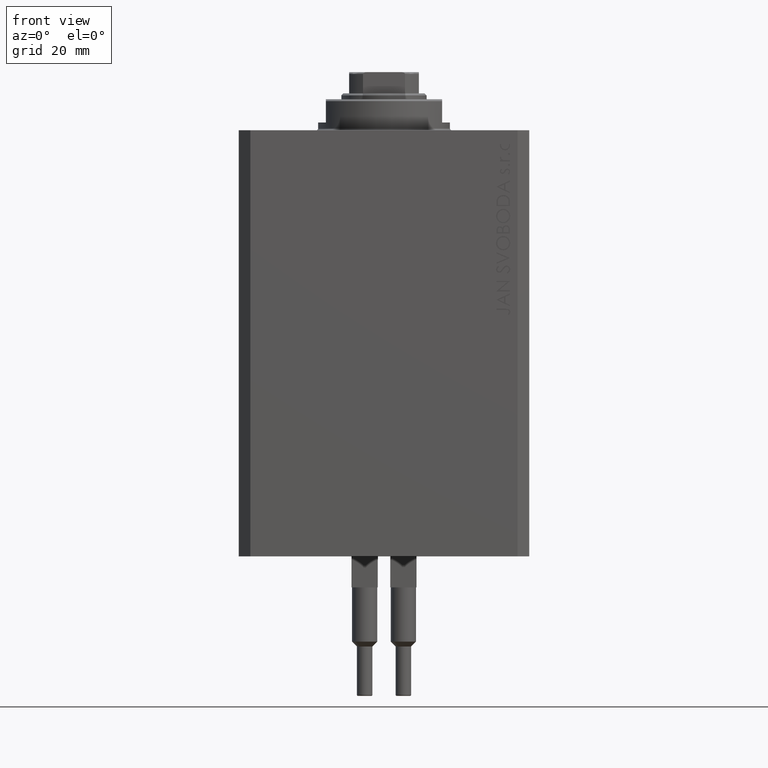
[diagram: clean part render]
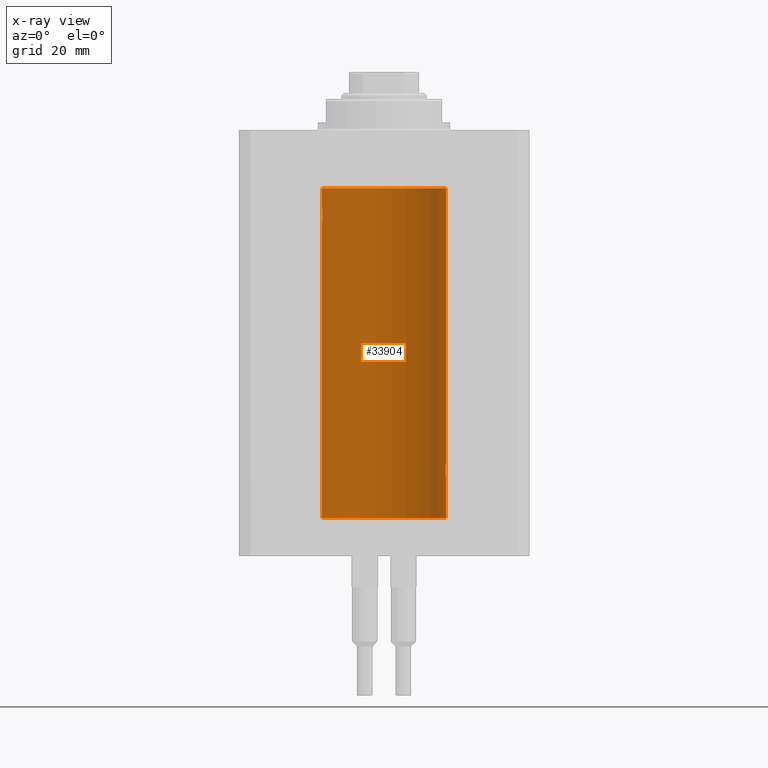
[diagram: x-ray — body ghosted, one internal face saturated and labeled with its STEP entity id]
A machine part, front view, then the same camera in x-ray: the body is ghosted and one INTERNAL B-rep face — a face not visible from any outside direction — is saturated and labeled: STEP entity #33904.
In plain terms, the highlighted cylindrical surface (partial cylindrical patch) has radius 16 mm, axis along (0, 0, 1).
Its self-contained STEP definition (entity closure, byte-faithful):
#108 = CARTESIAN_POINT ( 'NONE',  ( -15.96895041604535770, 1.002241074716284874, -20.26431901501738153 ) ) ;
#787 = FACE_OUTER_BOUND ( 'NONE', #20919, .T. ) ;
#915 = CARTESIAN_POINT ( 'NONE',  ( 15.90582997788426312, 1.734897462761020082, -86.99646332855050446 ) ) ;
#1781 = CARTESIAN_POINT ( 'NONE',  ( 16.00000000000000000, 3.524002214059393877E-15, -90.00000000000000000 ) ) ;
#2538 = ORIENTED_EDGE ( 'NONE', *, *, #16337, .F. ) ;
#3181 = DIRECTION ( 'NONE',  ( 1.000000000000000000, 0.000000000000000000, 0.000000000000000000 ) ) ;
#3207 = DIRECTION ( 'NONE',  ( -0.000000000000000000, -0.000000000000000000, 1.000000000000000000 ) ) ;
#3283 = CARTESIAN_POINT ( 'NONE',  ( -15.87451999516785506, 1.999903730784163169, -21.73808537237744432 ) ) ;
#3529 = CARTESIAN_POINT ( 'NONE',  ( -15.97583181162461052, 0.8874076679346778462, -20.20286585251778888 ) ) ;
#3767 = CARTESIAN_POINT ( 'NONE',  ( -15.98744362947834929, 0.6452446332038160870, -20.10241129944407490 ) ) ;
#4047 = CARTESIAN_POINT ( 'NONE',  ( 16.00000000000000000, -2.738688404655786685E-23, -86.00000000000000000 ) ) ;
#4340 = CARTESIAN_POINT ( 'NONE',  ( 15.92911104305801828, 1.507378839264603476, -86.67893664295412748 ) ) ;
#4706 = CARTESIAN_POINT ( 'NONE',  ( -15.99834873924246104, 0.2632563459770838055, -23.98690924832126115 ) ) ;
#5138 = CARTESIAN_POINT ( 'NONE',  ( 15.87450786638750699, 2.000000000000297096, -88.00000000000000000 ) ) ;
#5308 = CARTESIAN_POINT ( 'NONE',  ( 16.00000000000000000, 0.000000000000000000, -15.00000000000000000 ) ) ;
#5840 = CARTESIAN_POINT ( 'NONE',  ( 15.92096875784782739, 1.599058044721133331, -89.22922593843965444 ) ) ;
#5883 = CIRCLE ( 'NONE', #26816, 16.00000000000000000 ) ;
#6320 = DIRECTION ( 'NONE',  ( -0.000000000000000000, -0.000000000000000000, 1.000000000000000000 ) ) ;
#7061 = VECTOR ( 'NONE', #6320, 1000.000000000000000 ) ;
#7351 = B_SPLINE_CURVE_WITH_KNOTS ( 'NONE', 3,
 ( #38864, #20149, #42295, #24032, #38633, #35219, #16770, #46402, #34743, #5840, #45921, #12904, #9012, #5138 ),
 .UNSPECIFIED., .F., .F.,
 ( 4, 2, 2, 2, 2, 2, 4 ),
 ( 3.424160547694500162E-18, 0.0003912813346923356916, 0.0007825626693846680221, 0.001173844004077000082, 0.001565125338769331924, 0.002347688008154024883, 0.003130250677538718058 ),
 .UNSPECIFIED. ) ;
#7411 = CARTESIAN_POINT ( 'NONE',  ( -15.92092783521423272, 1.590393755196006786, -23.21967657442277755 ) ) ;
#7644 = CARTESIAN_POINT ( 'NONE',  ( -16.00000000000000000, 8.139613661842072923E-16, -20.00000000000000000 ) ) ;
#7844 = CYLINDRICAL_SURFACE ( 'NONE', #39883, 16.00000000000000000 ) ;
#8256 = AXIS2_PLACEMENT_3D ( 'NONE', #47142, #14126, #3181 ) ;
#8354 = CARTESIAN_POINT ( 'NONE',  ( -15.97587307151818159, 0.8866640484200133399, -23.79749928605040665 ) ) ;
#8575 = CARTESIAN_POINT ( 'NONE',  ( -16.00000000000000000, 0.1305944228192325030, -23.99999999999999645 ) ) ;
#8693 = VERTEX_POINT ( 'NONE', #37303 ) ;
#9012 = CARTESIAN_POINT ( 'NONE',  ( 15.87450786638751410, 2.000000000000297096, -88.26124530359815878 ) ) ;
#9728 = DIRECTION ( 'NONE',  ( -0.000000000000000000, -0.000000000000000000, 1.000000000000000000 ) ) ;
#10472 = CARTESIAN_POINT ( 'NONE',  ( -16.00000000000000000, 1.959434878635765131E-15, -100.0999999999999943 ) ) ;
#10914 = CARTESIAN_POINT ( 'NONE',  ( 16.00000000000000000, 0.000000000000000000, -100.0999999999999943 ) ) ;
#11181 = EDGE_CURVE ( 'NONE', #15836, #20754, #7351, .T. ) ;
#11297 = CARTESIAN_POINT ( 'NONE',  ( -15.95377581882983442, 1.220169175415122931, -23.59001528100121803 ) ) ;
#11631 = CARTESIAN_POINT ( 'NONE',  ( 15.88712192135845491, 1.897869642555071179, -87.35557946728211220 ) ) ;
#12904 = CARTESIAN_POINT ( 'NONE',  ( 15.88135773388169092, 1.947448446433282854, -88.52472455433247944 ) ) ;
#13458 = CARTESIAN_POINT ( 'NONE',  ( -16.00000000000000000, 1.959434878635765131E-15, -15.00000000000000000 ) ) ;
#13561 = VECTOR ( 'NONE', #34687, 1000.000000000000000 ) ;
#13675 = EDGE_CURVE ( 'NONE', #30111, #14441, #13753, .T. ) ;
#13753 = LINE ( 'NONE', #43374, #13561 ) ;
#14105 = ORIENTED_EDGE ( 'NONE', *, *, #43479, .T. ) ;
#14126 = DIRECTION ( 'NONE',  ( 0.000000000000000000, 0.000000000000000000, 1.000000000000000000 ) ) ;
#14393 = CARTESIAN_POINT ( 'NONE',  ( 15.89878974374255449, 1.797508500259969777, -87.11334888788564967 ) ) ;
#14441 = VERTEX_POINT ( 'NONE', #5308 ) ;
#14471 = CARTESIAN_POINT ( 'NONE',  ( -15.87450182760079542, 2.000047931387149092, -22.12985308350499380 ) ) ;
#14705 = CARTESIAN_POINT ( 'NONE',  ( -15.88709929148890510, 1.898058445420892637, -22.64386968033013403 ) ) ;
#15171 = CARTESIAN_POINT ( 'NONE',  ( -15.95382484008323409, 1.219564485341772198, -20.40948495147901554 ) ) ;
#15406 = CARTESIAN_POINT ( 'NONE',  ( -15.92099550861380131, 1.598790766515155282, -20.77043888260214644 ) ) ;
#15501 = CARTESIAN_POINT ( 'NONE',  ( 15.87450786638751055, 2.000000000000297984, -87.86943869497294202 ) ) ;
#15836 = VERTEX_POINT ( 'NONE', #1781 ) ;
#15973 = CARTESIAN_POINT ( 'NONE',  ( 15.88249567060696243, 1.935716055827872539, -87.48027816021618719 ) ) ;
#16117 = CARTESIAN_POINT ( 'NONE',  ( -15.98747331501412461, 0.6445079780200578812, -23.89783726498894723 ) ) ;
#16130 = B_SPLINE_CURVE_WITH_KNOTS ( 'NONE', 3,
 ( #23245, #15501, #17999, #15973, #11631, #14393, #915, #30785, #4340, #26893, #26182, #26652, #30292, #45379, #33714, #41023, #45138, #23011 ),
 .UNSPECIFIED., .F., .F.,
 ( 4, 2, 2, 2, 2, 2, 2, 2, 4 ),
 ( 0.003130250677538718058, 0.003521348247420690372, 0.003912445817302662686, 0.004303543387184635000, 0.004694640957066607313, 0.005085738526948579627, 0.005476836096830552808, 0.005867933666712525122, 0.006259031236594497435 ),
 .UNSPECIFIED. ) ;
#16337 = EDGE_CURVE ( 'NONE', #17304, #29927, #26049, .T. ) ;
#16739 = VERTEX_POINT ( 'NONE', #13458 ) ;
#16770 = CARTESIAN_POINT ( 'NONE',  ( 15.96893716441426214, 1.002454028984434808, -89.73556042441214231 ) ) ;
#17304 = VERTEX_POINT ( 'NONE', #10914 ) ;
#17999 = CARTESIAN_POINT ( 'NONE',  ( 15.87617168140110380, 1.986916736633999037, -87.73680934434936773 ) ) ;
#18332 = CARTESIAN_POINT ( 'NONE',  ( -15.90457341008072412, 1.747750603376305278, -20.99340818440418488 ) ) ;
#18563 = CARTESIAN_POINT ( 'NONE',  ( -15.92908549642226745, 1.507649250492136606, -23.32075824828932653 ) ) ;
#19002 = DIRECTION ( 'NONE',  ( -0.000000000000000000, -0.000000000000000000, 1.000000000000000000 ) ) ;
#20149 = CARTESIAN_POINT ( 'NONE',  ( 15.99999999999999645, 0.1323149458028788361, -90.00000000000002842 ) ) ;
#20754 = VERTEX_POINT ( 'NONE', #43572 ) ;
#20919 = EDGE_LOOP ( 'NONE', ( #40699, #2538, #43968, #27334, #22733, #34567, #14105, #26850, #30413 ) ) ;
#21646 = LINE ( 'NONE', #36467, #42090 ) ;
#21767 = VECTOR ( 'NONE', #9728, 1000.000000000000000 ) ;
#22435 = CARTESIAN_POINT ( 'NONE',  ( -15.99836091803360283, 0.2623312429553310565, -20.01299475991587329 ) ) ;
#22733 = ORIENTED_EDGE ( 'NONE', *, *, #47907, .T. ) ;
#23011 = CARTESIAN_POINT ( 'NONE',  ( 16.00000000000000000, -2.738688404655786685E-23, -86.00000000000000000 ) ) ;
#23115 = CARTESIAN_POINT ( 'NONE',  ( 0.000000000000000000, 0.000000000000000000, -100.0999999999999943 ) ) ;
#23193 = EDGE_CURVE ( 'NONE', #17304, #15836, #28903, .T. ) ;
#23208 = EDGE_CURVE ( 'NONE', #29927, #8693, #47131, .T. ) ;
#23245 = CARTESIAN_POINT ( 'NONE',  ( 15.87450786638750699, 2.000000000000297096, -88.00000000000000000 ) ) ;
#24032 = CARTESIAN_POINT ( 'NONE',  ( 15.99211620657850474, 0.5182628822511399225, -89.93608344894170159 ) ) ;
#25056 = DIRECTION ( 'NONE',  ( 0.000000000000000000, 0.000000000000000000, 1.000000000000000000 ) ) ;
#25299 = EDGE_CURVE ( 'NONE', #46123, #8693, #47530, .T. ) ;
#25370 = CARTESIAN_POINT ( 'NONE',  ( -15.94553003295877680, 1.322357532253827461, -20.49389287531754889 ) ) ;
#25836 = CARTESIAN_POINT ( 'NONE',  ( -15.90580292899658055, 1.735145127817749655, -23.00311247035039486 ) ) ;
#26049 = CIRCLE ( 'NONE', #8256, 16.00000000000000000 ) ;
#26076 = CARTESIAN_POINT ( 'NONE',  ( -15.96885838080210362, 1.003662148334370174, -23.73482670674955486 ) ) ;
#26182 = CARTESIAN_POINT ( 'NONE',  ( 15.95379436193629985, 1.219925354616377966, -86.40980009844315646 ) ) ;
#26652 = CARTESIAN_POINT ( 'NONE',  ( 15.96887171920781689, 1.003448269354837441, -86.26505182542071282 ) ) ;
#26816 = AXIS2_PLACEMENT_3D ( 'NONE', #28220, #25056, #39405 ) ;
#26850 = ORIENTED_EDGE ( 'NONE', *, *, #30667, .F. ) ;
#26893 = CARTESIAN_POINT ( 'NONE',  ( 15.94566414814287469, 1.320819617421907788, -86.49240758272487994 ) ) ;
#27334 = ORIENTED_EDGE ( 'NONE', *, *, #11181, .T. ) ;
#28220 = CARTESIAN_POINT ( 'NONE',  ( 0.000000000000000000, 0.000000000000000000, -15.00000000000000000 ) ) ;
#28903 = LINE ( 'NONE', #31807, #21767 ) ;
#29270 = CARTESIAN_POINT ( 'NONE',  ( -15.88247600692092831, 1.935876924222084350, -22.51913097710111700 ) ) ;
#29496 = CARTESIAN_POINT ( 'NONE',  ( -15.89876304682112362, 1.797743958659264507, -22.88617757057269841 ) ) ;
#29732 = CARTESIAN_POINT ( 'NONE',  ( -15.99211983514074298, 0.5181437283162074747, -20.06388673317935911 ) ) ;
#29927 = VERTEX_POINT ( 'NONE', #33960 ) ;
#30111 = VERTEX_POINT ( 'NONE', #4047 ) ;
#30292 = CARTESIAN_POINT ( 'NONE',  ( 15.97588373855009536, 0.8864683965309503311, -86.20240655627672766 ) ) ;
#30413 = ORIENTED_EDGE ( 'NONE', *, *, #25299, .T. ) ;
#30667 = EDGE_CURVE ( 'NONE', #46123, #16739, #21646, .T. ) ;
#30785 = CARTESIAN_POINT ( 'NONE',  ( 15.92095407913750726, 1.590131347295332009, -86.77998469042918828 ) ) ;
#31394 = CARTESIAN_POINT ( 'NONE',  ( -16.00000000000000000, 1.959434851239607631E-15, -23.99999999999999645 ) ) ;
#31807 = CARTESIAN_POINT ( 'NONE',  ( 16.00000000000000000, 0.000000000000000000, -100.0999999999999943 ) ) ;
#33369 = CARTESIAN_POINT ( 'NONE',  ( -15.94564302722881877, 1.321075116345886924, -23.50737160312428742 ) ) ;
#33714 = CARTESIAN_POINT ( 'NONE',  ( 15.99207203775707065, 0.5197027266689088210, -86.06427960618061945 ) ) ;
#33904 = ADVANCED_FACE ( 'NONE', ( #787 ), #7844, .F. ) ;
#33960 = CARTESIAN_POINT ( 'NONE',  ( -16.00000000000000000, 1.959434878635765131E-15, -100.0999999999999943 ) ) ;
#34567 = ORIENTED_EDGE ( 'NONE', *, *, #13675, .T. ) ;
#34687 = DIRECTION ( 'NONE',  ( -0.000000000000000000, -0.000000000000000000, 1.000000000000000000 ) ) ;
#34743 = CARTESIAN_POINT ( 'NONE',  ( 15.94550883254178331, 1.322613426523511881, -89.50588495029012392 ) ) ;
#34995 = CARTESIAN_POINT ( 'NONE',  ( -16.00000000000000000, 8.139613661842072923E-16, -20.00000000000000000 ) ) ;
#35027 = CARTESIAN_POINT ( 'NONE',  ( -15.99206840425678955, 0.5198215460038748681, -23.93569052926128649 ) ) ;
#35219 = CARTESIAN_POINT ( 'NONE',  ( 15.97582125337101999, 0.8876008124445644576, -89.79704090617748591 ) ) ;
#36467 = CARTESIAN_POINT ( 'NONE',  ( -16.00000000000000000, 1.959434878635765131E-15, -100.0999999999999943 ) ) ;
#36542 = CARTESIAN_POINT ( 'NONE',  ( -15.88137861827787134, 1.947280337074169587, -21.47468243540596333 ) ) ;
#37303 = CARTESIAN_POINT ( 'NONE',  ( -16.00000000000000000, 1.959434851239607631E-15, -23.99999999999999645 ) ) ;
#38633 = CARTESIAN_POINT ( 'NONE',  ( 15.98743782203464825, 0.6453927552190293904, -89.89754035852679692 ) ) ;
#38864 = CARTESIAN_POINT ( 'NONE',  ( 16.00000000000000000, 3.524002214059393877E-15, -90.00000000000000000 ) ) ;
#39405 = DIRECTION ( 'NONE',  ( 1.000000000000000000, 0.000000000000000000, 0.000000000000000000 ) ) ;
#39883 = AXIS2_PLACEMENT_3D ( 'NONE', #23115, #19002, #41121 ) ;
#40699 = ORIENTED_EDGE ( 'NONE', *, *, #23208, .F. ) ;
#41023 = CARTESIAN_POINT ( 'NONE',  ( 15.99834953062734222, 0.2631943783489354982, -86.01308452963878892 ) ) ;
#41121 = DIRECTION ( 'NONE',  ( 1.000000000000000000, 0.000000000000000000, 0.000000000000000000 ) ) ;
#42090 = VECTOR ( 'NONE', #3207, 1000.000000000000000 ) ;
#42295 = CARTESIAN_POINT ( 'NONE',  ( 15.99836014839681830, 0.2623923436743452187, -89.98699919334814012 ) ) ;
#43374 = CARTESIAN_POINT ( 'NONE',  ( 16.00000000000000000, 0.000000000000000000, -100.0999999999999943 ) ) ;
#43479 = EDGE_CURVE ( 'NONE', #14441, #16739, #5883, .T. ) ;
#43572 = CARTESIAN_POINT ( 'NONE',  ( 15.87450786638750699, 2.000000000000297096, -88.00000000000000000 ) ) ;
#43968 = ORIENTED_EDGE ( 'NONE', *, *, #23193, .T. ) ;
#45042 = CARTESIAN_POINT ( 'NONE',  ( -15.99999999999999645, 0.1322838750249263340, -20.00000000000000000 ) ) ;
#45138 = CARTESIAN_POINT ( 'NONE',  ( 16.00000000000000000, 0.1305637488590863926, -85.99999999999998579 ) ) ;
#45379 = CARTESIAN_POINT ( 'NONE',  ( 15.98747899434752817, 0.6443623600228916004, -86.10211550510818768 ) ) ;
#45921 = CARTESIAN_POINT ( 'NONE',  ( 15.90454527605181667, 1.748004143318092174, -89.00616739381551668 ) ) ;
#46123 = VERTEX_POINT ( 'NONE', #34995 ) ;
#46402 = CARTESIAN_POINT ( 'NONE',  ( 15.95380611548778660, 1.219810915946573759, -89.59032870701324214 ) ) ;
#47131 = LINE ( 'NONE', #10472, #7061 ) ;
#47142 = CARTESIAN_POINT ( 'NONE',  ( 0.000000000000000000, 0.000000000000000000, -100.0999999999999943 ) ) ;
#47530 = B_SPLINE_CURVE_WITH_KNOTS ( 'NONE', 3,
 ( #7644, #45042, #22435, #29732, #3767, #3529, #108, #15171, #25370, #15406, #18332, #36542, #3283, #14471, #47971, #29270, #14705, #29496, #25836, #7411, #18563, #33369, #11297, #26076, #8354, #16117, #35027, #4706, #8575, #31394 ),
 .UNSPECIFIED., .F., .F.,
 ( 4, 2, 2, 2, 2, 2, 2, 2, 2, 2, 2, 2, 2, 2, 4 ),
 ( 7.909002969168862706E-19, 0.0003911894522871180884, 0.0007823789045742353095, 0.001173568356861352802, 0.001564757809148469968, 0.002347136713722698664, 0.003129515618296926493, 0.003520705070584046262, 0.003911894522871165597, 0.004303083975158284932, 0.004694273427445404268, 0.005085462879732523603, 0.005476652332019642938, 0.005867841784306762273, 0.006259031236593881609 ),
 .UNSPECIFIED. ) ;
#47907 = EDGE_CURVE ( 'NONE', #20754, #30111, #16130, .T. ) ;
#47971 = CARTESIAN_POINT ( 'NONE',  ( -15.87616016863256618, 1.987008272775798723, -22.26251583007899626 ) ) ;